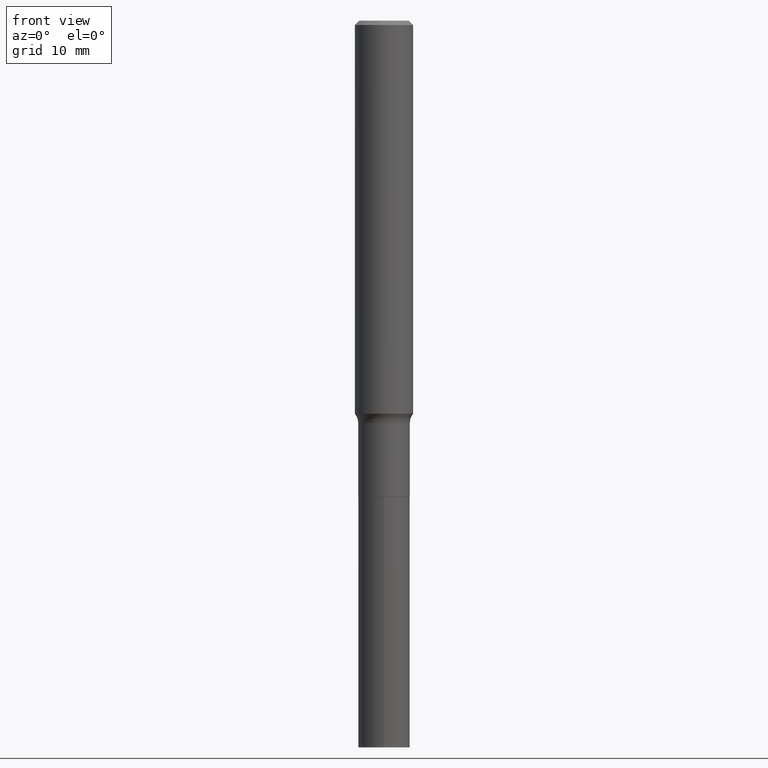
[diagram: clean part render]
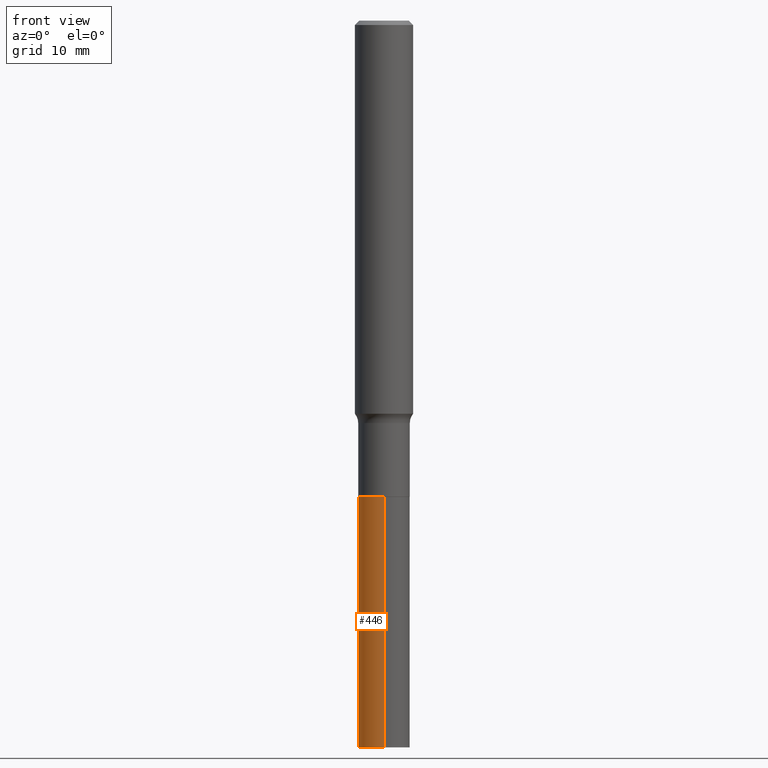
[diagram: same view with one face highlighted and labeled with its STEP entity id]
A machine part, front view. The second image highlights one B-rep face of the part: STEP entity #446.
In plain terms, the highlighted cylindrical surface (edge-blend (fillet) strip) has radius 3.5497 mm, axis along (-0, 0, 1).
Its self-contained STEP definition (entity closure, byte-faithful):
#18 = CARTESIAN_POINT ( 'NONE',  ( 9.929834732248363439E-16, 0.1397499999999909925, -2.579000000000000625 ) ) ;
#25 = CIRCLE ( 'NONE', #94, 0.1397500000000000131 ) ;
#63 = CARTESIAN_POINT ( 'NONE',  ( 9.929834732248030145E-16, 0.1397499999999910203, -2.579000000000000625 ) ) ;
#65 = FACE_OUTER_BOUND ( 'NONE', #334, .T. ) ;
#66 = AXIS2_PLACEMENT_3D ( 'NONE', #91, #210, #93 ) ;
#83 = EDGE_CURVE ( 'NONE', #271, #428, #243, .T. ) ;
#86 = DIRECTION ( 'NONE',  ( -2.445656538134658831E-29, 3.491212496006390611E-15, 1.000000000000000000 ) ) ;
#91 = CARTESIAN_POINT ( 'NONE',  ( 9.628065629938335282E-29, -1.374559694245315281E-14, -3.937000000000000721 ) ) ;
#93 = DIRECTION ( 'NONE',  ( -6.982962677686265133E-15, -1.000000000000000000, 3.909621457837943227E-15 ) ) ;
#94 = AXIS2_PLACEMENT_3D ( 'NONE', #258, #180, #459 ) ;
#137 = VERTEX_POINT ( 'NONE', #18 ) ;
#142 = CARTESIAN_POINT ( 'NONE',  ( 9.929834732248195806E-16, 0.1397499999999862741, -3.937000000000001165 ) ) ;
#144 = ORIENTED_EDGE ( 'NONE', *, *, #83, .T. ) ;
#145 = CYLINDRICAL_SURFACE ( 'NONE', #363, 0.1397500000000000131 ) ;
#168 = CARTESIAN_POINT ( 'NONE',  ( -9.758690342065924904E-16, -0.1397500000000090059, -2.578999999999999293 ) ) ;
#176 = CARTESIAN_POINT ( 'NONE',  ( -9.758690342065593582E-16, -0.1397500000000137521, -3.937000000000000277 ) ) ;
#180 = DIRECTION ( 'NONE',  ( -2.445656538134658831E-29, 3.491212496006390611E-15, 1.000000000000000000 ) ) ;
#197 = VERTEX_POINT ( 'NONE', #168 ) ;
#210 = DIRECTION ( 'NONE',  ( -2.445656538134658831E-29, 3.491212496006390611E-15, 1.000000000000000000 ) ) ;
#243 = CIRCLE ( 'NONE', #66, 0.1397500000000000131 ) ;
#252 = VECTOR ( 'NONE', #86, 39.37007874015748143 ) ;
#258 = CARTESIAN_POINT ( 'NONE',  ( 6.306864051151467131E-29, -9.004530372876471973E-15, -2.579000000000000181 ) ) ;
#265 = ORIENTED_EDGE ( 'NONE', *, *, #396, .F. ) ;
#271 = VERTEX_POINT ( 'NONE', #142 ) ;
#294 = DIRECTION ( 'NONE',  ( -6.982962677686265133E-15, -1.000000000000000000, 3.909621457837943227E-15 ) ) ;
#304 = ORIENTED_EDGE ( 'NONE', *, *, #427, .F. ) ;
#305 = ORIENTED_EDGE ( 'NONE', *, *, #362, .T. ) ;
#306 = LINE ( 'NONE', #406, #252 ) ;
#312 = LINE ( 'NONE', #63, #350 ) ;
#327 = DIRECTION ( 'NONE',  ( -2.445656538134658831E-29, 3.491212496006390611E-15, 1.000000000000000000 ) ) ;
#334 = EDGE_LOOP ( 'NONE', ( #265, #144, #305, #304 ) ) ;
#350 = VECTOR ( 'NONE', #395, 39.37007874015748143 ) ;
#362 = EDGE_CURVE ( 'NONE', #428, #197, #306, .T. ) ;
#363 = AXIS2_PLACEMENT_3D ( 'NONE', #417, #327, #294 ) ;
#395 = DIRECTION ( 'NONE',  ( -2.445656538134658831E-29, 3.491212496006390611E-15, 1.000000000000000000 ) ) ;
#396 = EDGE_CURVE ( 'NONE', #271, #137, #312, .T. ) ;
#406 = CARTESIAN_POINT ( 'NONE',  ( -9.758690342065924904E-16, -0.1397500000000090059, -2.578999999999999293 ) ) ;
#417 = CARTESIAN_POINT ( 'NONE',  ( 6.306864051151467131E-29, -9.004530372876471973E-15, -2.579000000000000181 ) ) ;
#427 = EDGE_CURVE ( 'NONE', #137, #197, #25, .T. ) ;
#428 = VERTEX_POINT ( 'NONE', #176 ) ;
#446 = ADVANCED_FACE ( 'NONE', ( #65 ), #145, .T. ) ;
#459 = DIRECTION ( 'NONE',  ( -6.982962677686265133E-15, -1.000000000000000000, 3.909621457837943227E-15 ) ) ;